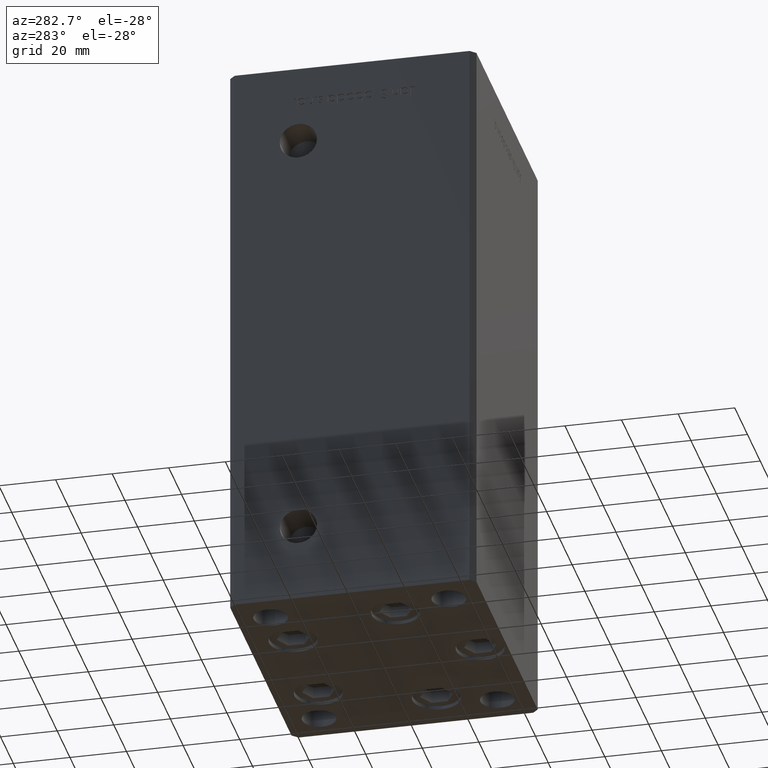
[diagram: clean part render]
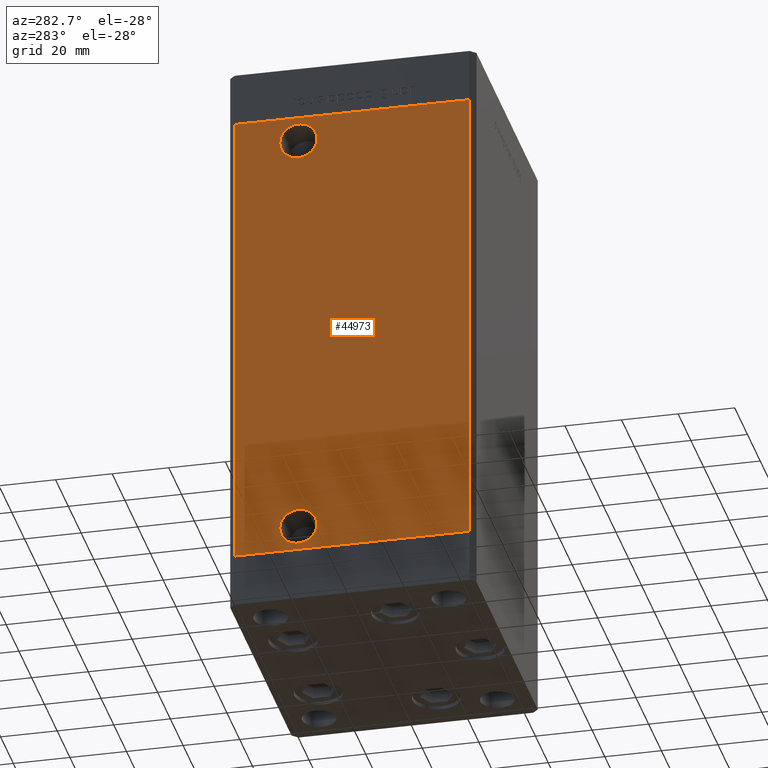
[diagram: same view with one face highlighted and labeled with its STEP entity id]
A machine part, auxiliary view. The second image highlights one B-rep face of the part: STEP entity #44973.
In plain terms, the highlighted planar face has unit normal (1, 0, 0).
Its self-contained STEP definition (entity closure, byte-faithful):
#2168 = VECTOR ( 'NONE', #48500, 1000.000000000000000 ) ;
#2822 = CARTESIAN_POINT ( 'NONE',  ( -50.00000000000000711, 19.00000000000000000, 159.5000000000000000 ) ) ;
#4315 = EDGE_LOOP ( 'NONE', ( #7431, #30519 ) ) ;
#4916 = CARTESIAN_POINT ( 'NONE',  ( -50.00000000000000711, 25.58000000000000540, 9.000000000000000000 ) ) ;
#6079 = EDGE_LOOP ( 'NONE', ( #29715, #15864, #28686, #16619 ) ) ;
#6861 = VECTOR ( 'NONE', #9686, 1000.000000000000000 ) ;
#7431 = ORIENTED_EDGE ( 'NONE', *, *, #37504, .F. ) ;
#8957 = CARTESIAN_POINT ( 'NONE',  ( -50.00000000000001421, 41.49999999999999289, 168.5000000000000000 ) ) ;
#9686 = DIRECTION ( 'NONE',  ( 3.344045254895050973E-16, -1.000000000000000000, 0.000000000000000000 ) ) ;
#10247 = EDGE_CURVE ( 'NONE', #30179, #21152, #21775, .T. ) ;
#11046 = LINE ( 'NONE', #27065, #32922 ) ;
#11066 = AXIS2_PLACEMENT_3D ( 'NONE', #13228, #21130, #48941 ) ;
#13228 = CARTESIAN_POINT ( 'NONE',  ( -50.00000000000000711, 19.00000000000000000, 159.5000000000000000 ) ) ;
#15864 = ORIENTED_EDGE ( 'NONE', *, *, #36985, .F. ) ;
#16619 = ORIENTED_EDGE ( 'NONE', *, *, #41929, .T. ) ;
#17421 = CARTESIAN_POINT ( 'NONE',  ( -50.00000000000001421, 41.49999999999999289, 0.000000000000000000 ) ) ;
#17575 = FACE_BOUND ( 'NONE', #4315, .T. ) ;
#17829 = DIRECTION ( 'NONE',  ( 1.000000000000000000, 3.344045254895050973E-16, -0.000000000000000000 ) ) ;
#18081 = PLANE ( 'NONE',  #50817 ) ;
#18338 = LINE ( 'NONE', #45641, #6861 ) ;
#19197 = VERTEX_POINT ( 'NONE', #8957 ) ;
#19699 = CIRCLE ( 'NONE', #44827, 6.580000000000016058 ) ;
#20169 = CARTESIAN_POINT ( 'NONE',  ( -50.00000000000001421, 41.49999999999999289, 168.5000000000000000 ) ) ;
#21130 = DIRECTION ( 'NONE',  ( -1.000000000000000000, -2.275047181608927644E-16, 0.000000000000000000 ) ) ;
#21152 = VERTEX_POINT ( 'NONE', #31433 ) ;
#21518 = DIRECTION ( 'NONE',  ( -3.344045254895050973E-16, 1.000000000000000000, 0.000000000000000000 ) ) ;
#21775 = CIRCLE ( 'NONE', #41061, 6.580000000000002736 ) ;
#21892 = CARTESIAN_POINT ( 'NONE',  ( -50.00000000000000711, 19.00000000000000000, 9.000000000000000000 ) ) ;
#22418 = DIRECTION ( 'NONE',  ( -1.000000000000000000, -2.275047181608927644E-16, 0.000000000000000000 ) ) ;
#24053 = AXIS2_PLACEMENT_3D ( 'NONE', #21892, #22418, #26091 ) ;
#25978 = VERTEX_POINT ( 'NONE', #47634 ) ;
#26091 = DIRECTION ( 'NONE',  ( 0.000000000000000000, -1.000000000000000000, 0.000000000000000000 ) ) ;
#27065 = CARTESIAN_POINT ( 'NONE',  ( -50.00000000000001421, 41.49999999999999289, 0.000000000000000000 ) ) ;
#28042 = EDGE_CURVE ( 'NONE', #28310, #39259, #46270, .T. ) ;
#28310 = VERTEX_POINT ( 'NONE', #44677 ) ;
#28667 = EDGE_CURVE ( 'NONE', #19197, #25978, #18338, .T. ) ;
#28686 = ORIENTED_EDGE ( 'NONE', *, *, #28667, .F. ) ;
#29032 = CARTESIAN_POINT ( 'NONE',  ( -49.99999999999998579, -41.49999999999999289, 168.5000000000000000 ) ) ;
#29106 = EDGE_CURVE ( 'NONE', #32077, #42812, #11046, .T. ) ;
#29715 = ORIENTED_EDGE ( 'NONE', *, *, #29106, .T. ) ;
#30179 = VERTEX_POINT ( 'NONE', #4916 ) ;
#30476 = CARTESIAN_POINT ( 'NONE',  ( -50.00000000000000711, 12.41999999999998394, 159.5000000000000000 ) ) ;
#30519 = ORIENTED_EDGE ( 'NONE', *, *, #28042, .F. ) ;
#30657 = DIRECTION ( 'NONE',  ( 0.000000000000000000, -1.000000000000000000, 0.000000000000000000 ) ) ;
#31433 = CARTESIAN_POINT ( 'NONE',  ( -50.00000000000000711, 12.41999999999999638, 9.000000000000000000 ) ) ;
#31730 = CARTESIAN_POINT ( 'NONE',  ( -49.99999999999998579, -41.49999999999999289, 0.000000000000000000 ) ) ;
#32077 = VERTEX_POINT ( 'NONE', #17421 ) ;
#32922 = VECTOR ( 'NONE', #43051, 1000.000000000000000 ) ;
#33909 = CARTESIAN_POINT ( 'NONE',  ( -50.00000000000000711, 19.00000000000000000, 9.000000000000000000 ) ) ;
#36638 = ORIENTED_EDGE ( 'NONE', *, *, #48700, .F. ) ;
#36985 = EDGE_CURVE ( 'NONE', #25978, #42812, #50002, .T. ) ;
#37504 = EDGE_CURVE ( 'NONE', #39259, #28310, #19699, .T. ) ;
#37519 = FACE_BOUND ( 'NONE', #38544, .T. ) ;
#38544 = EDGE_LOOP ( 'NONE', ( #36638, #49736 ) ) ;
#39259 = VERTEX_POINT ( 'NONE', #30476 ) ;
#40618 = VECTOR ( 'NONE', #45025, 1000.000000000000000 ) ;
#41061 = AXIS2_PLACEMENT_3D ( 'NONE', #33909, #42028, #49924 ) ;
#41697 = FACE_OUTER_BOUND ( 'NONE', #6079, .T. ) ;
#41929 = EDGE_CURVE ( 'NONE', #19197, #32077, #44033, .T. ) ;
#42028 = DIRECTION ( 'NONE',  ( -1.000000000000000000, -2.275047181608927644E-16, 0.000000000000000000 ) ) ;
#42812 = VERTEX_POINT ( 'NONE', #31730 ) ;
#43051 = DIRECTION ( 'NONE',  ( 3.344045254895050973E-16, -1.000000000000000000, 0.000000000000000000 ) ) ;
#43487 = DIRECTION ( 'NONE',  ( -1.000000000000000000, -2.275047181608927644E-16, 0.000000000000000000 ) ) ;
#44033 = LINE ( 'NONE', #20169, #2168 ) ;
#44677 = CARTESIAN_POINT ( 'NONE',  ( -50.00000000000000711, 25.58000000000001606, 159.5000000000000000 ) ) ;
#44827 = AXIS2_PLACEMENT_3D ( 'NONE', #2822, #43487, #30657 ) ;
#44973 = ADVANCED_FACE ( 'NONE', ( #37519, #17575, #41697 ), #18081, .F. ) ;
#45025 = DIRECTION ( 'NONE',  ( -0.000000000000000000, -0.000000000000000000, -1.000000000000000000 ) ) ;
#45641 = CARTESIAN_POINT ( 'NONE',  ( -50.00000000000001421, 41.49999999999999289, 168.5000000000000000 ) ) ;
#46270 = CIRCLE ( 'NONE', #11066, 6.580000000000016058 ) ;
#46677 = CIRCLE ( 'NONE', #24053, 6.580000000000002736 ) ;
#47634 = CARTESIAN_POINT ( 'NONE',  ( -49.99999999999998579, -41.49999999999999289, 168.5000000000000000 ) ) ;
#48500 = DIRECTION ( 'NONE',  ( -0.000000000000000000, -0.000000000000000000, -1.000000000000000000 ) ) ;
#48700 = EDGE_CURVE ( 'NONE', #21152, #30179, #46677, .T. ) ;
#48941 = DIRECTION ( 'NONE',  ( 0.000000000000000000, -1.000000000000000000, 0.000000000000000000 ) ) ;
#49600 = CARTESIAN_POINT ( 'NONE',  ( -50.00000000000001421, 41.49999999999999289, 168.5000000000000000 ) ) ;
#49736 = ORIENTED_EDGE ( 'NONE', *, *, #10247, .F. ) ;
#49924 = DIRECTION ( 'NONE',  ( 0.000000000000000000, -1.000000000000000000, 0.000000000000000000 ) ) ;
#50002 = LINE ( 'NONE', #29032, #40618 ) ;
#50817 = AXIS2_PLACEMENT_3D ( 'NONE', #49600, #17829, #21518 ) ;